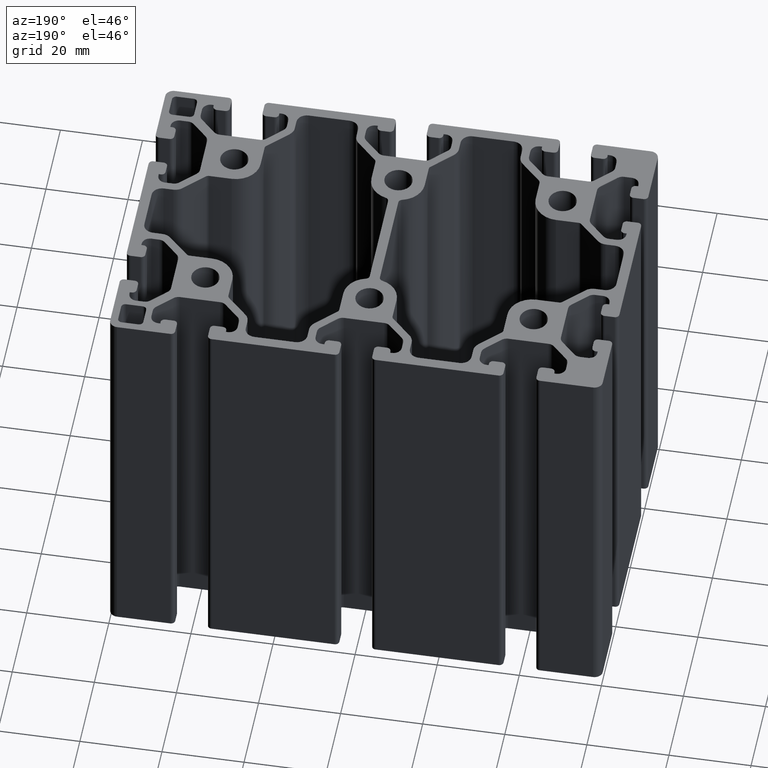
[diagram: clean part render]
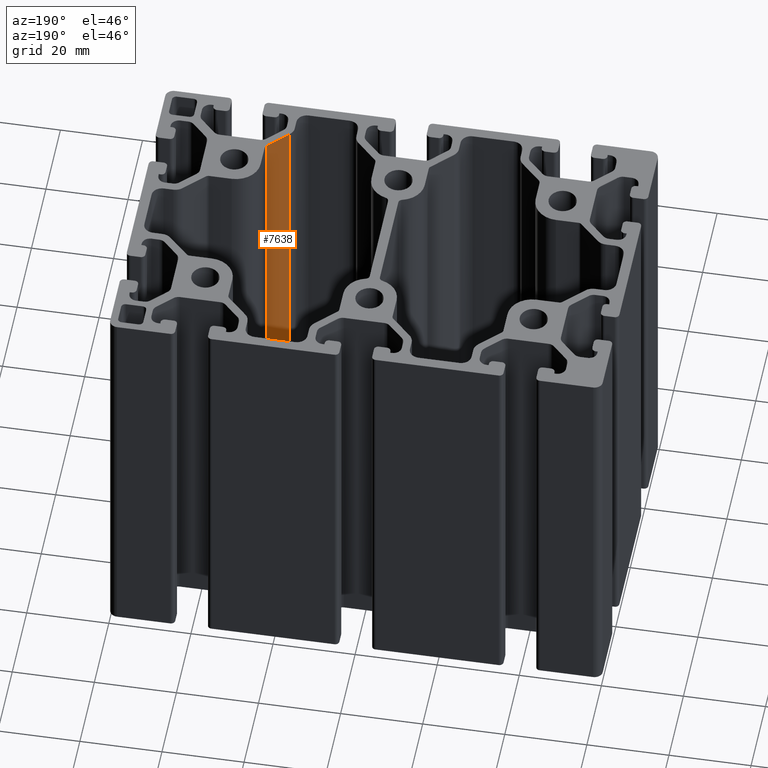
[diagram: same view with one face highlighted and labeled with its STEP entity id]
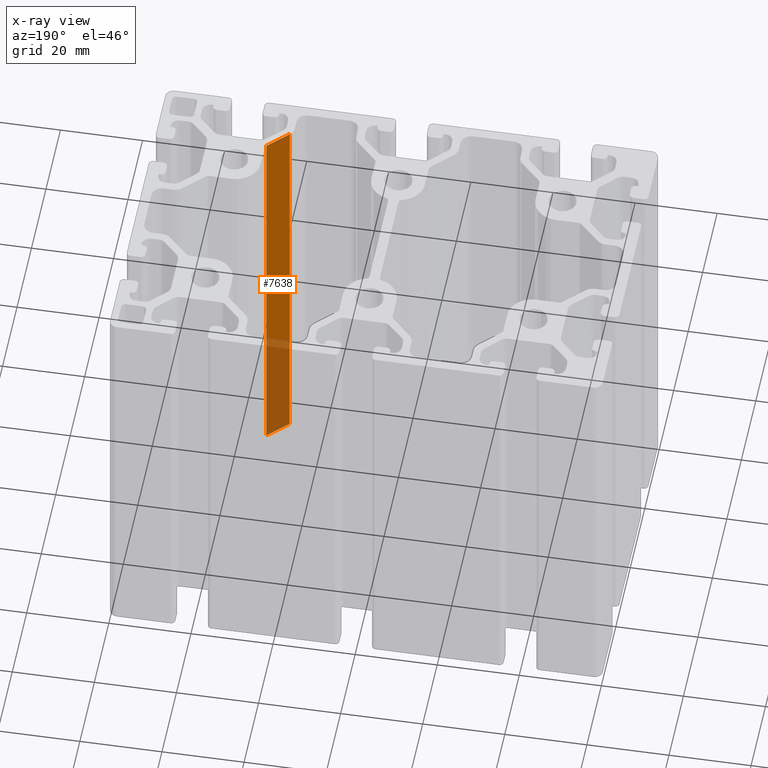
[diagram: x-ray of the same camera — body ghosted, the highlighted face saturated]
A machine part, auxiliary view. The second image highlights one B-rep face of the part: STEP entity #7638.
The next image is the same camera in x-ray: the body ghosted, the highlighted face saturated — about 31% of this face is hidden behind the body in this view.
In plain terms, the highlighted planar face has unit normal (0.7071, -0.7071, 0).
Its self-contained STEP definition (entity closure, byte-faithful):
#205=PLANE('',#8350);
#566=FACE_OUTER_BOUND('',#956,.T.);
#956=EDGE_LOOP('',(#6141,#6142,#6143,#6144));
#1692=LINE('',#12723,#2460);
#1693=LINE('',#12727,#2461);
#1694=LINE('',#12729,#2462);
#1695=LINE('',#12730,#2463);
#2460=VECTOR('',#10418,100.);
#2461=VECTOR('',#10423,6.82842712474615);
#2462=VECTOR('',#10424,100.);
#2463=VECTOR('',#10425,6.82842712474615);
#3615=VERTEX_POINT('',#12720);
#3616=VERTEX_POINT('',#12722);
#3617=VERTEX_POINT('',#12726);
#3618=VERTEX_POINT('',#12728);
#4689=EDGE_CURVE('',#3616,#3615,#1692,.T.);
#4691=EDGE_CURVE('',#3617,#3615,#1693,.T.);
#4692=EDGE_CURVE('',#3618,#3617,#1694,.T.);
#4693=EDGE_CURVE('',#3616,#3618,#1695,.T.);
#6141=ORIENTED_EDGE('',*,*,#4691,.F.);
#6142=ORIENTED_EDGE('',*,*,#4692,.F.);
#6143=ORIENTED_EDGE('',*,*,#4693,.F.);
#6144=ORIENTED_EDGE('',*,*,#4689,.T.);
#7638=ADVANCED_FACE('',(#566),#205,.F.);
#8350=AXIS2_PLACEMENT_3D('',#12725,#10421,#10422);
#10418=DIRECTION('',(0.,0.,1.));
#10421=DIRECTION('center_axis',(0.707106781186546,-0.707106781186549,0.));
#10422=DIRECTION('ref_axis',(0.,0.,-1.));
#10423=DIRECTION('',(-0.707106781186549,-0.707106781186546,0.));
#10424=DIRECTION('',(0.,0.,1.));
#10425=DIRECTION('',(0.707106781186549,0.707106781186546,0.));
#12720=CARTESIAN_POINT('',(28.3786796564403,-30.5606601717798,100.));
#12722=CARTESIAN_POINT('',(28.3786796564403,-30.5606601717798,0.));
#12723=CARTESIAN_POINT('',(28.3786796564403,-30.5606601717798,0.));
#12725=CARTESIAN_POINT('Origin',(33.2071067811865,-25.7322330470336,0.));
#12726=CARTESIAN_POINT('',(33.2071067811865,-25.7322330470336,100.));
#12727=CARTESIAN_POINT('',(31.3383883476483,-27.6009514805719,100.));
#12728=CARTESIAN_POINT('',(33.2071067811865,-25.7322330470336,0.));
#12729=CARTESIAN_POINT('',(33.2071067811865,-25.7322330470336,0.));
#12730=CARTESIAN_POINT('',(31.3383883476483,-27.6009514805719,0.));